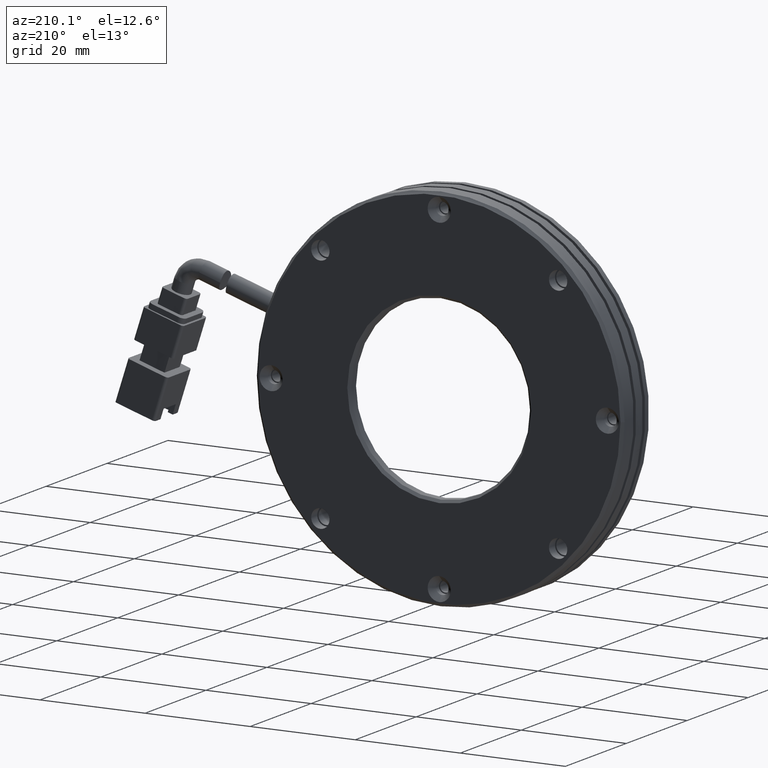
[diagram: clean part render]
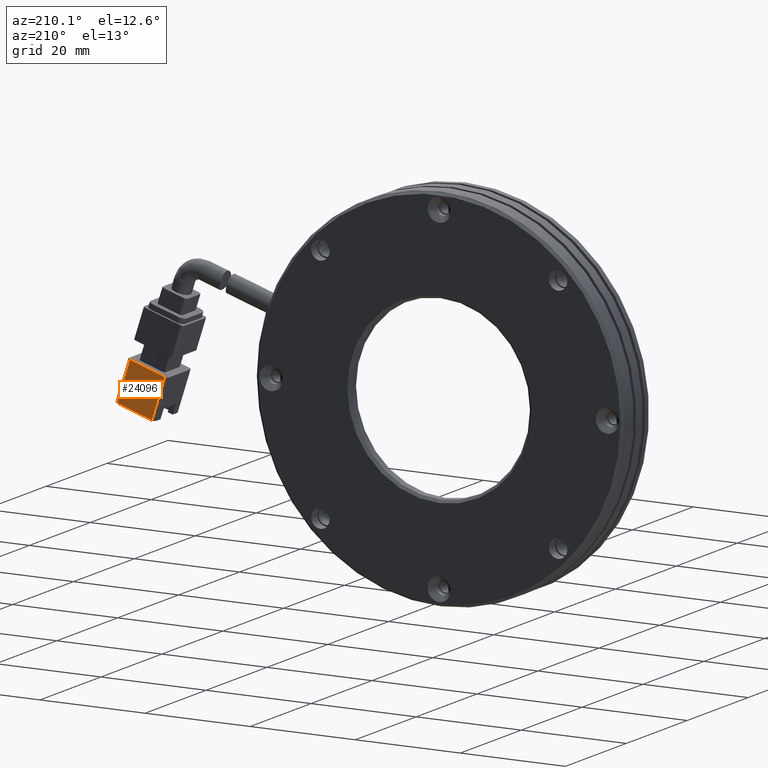
[diagram: same view with one face highlighted and labeled with its STEP entity id]
A machine part, auxiliary view. The second image highlights one B-rep face of the part: STEP entity #24096.
In plain terms, the highlighted planar face has unit normal (0, -1, 0).
Its self-contained STEP definition (entity closure, byte-faithful):
#176 = VECTOR ( 'NONE', #16676, 1000.000000000000100 ) ;
#2420 = EDGE_LOOP ( 'NONE', ( #38086, #36192, #39246, #17608 ) ) ;
#5446 = LINE ( 'NONE', #9832, #38492 ) ;
#6288 = VERTEX_POINT ( 'NONE', #12873 ) ;
#8391 = LINE ( 'NONE', #13557, #176 ) ;
#9832 = CARTESIAN_POINT ( 'NONE',  ( 49.55695576264164300, 12.26020291540428200, -9.906656460261640300 ) ) ;
#10977 = VERTEX_POINT ( 'NONE', #16696 ) ;
#11474 = PLANE ( 'NONE',  #13454 ) ;
#11525 = VECTOR ( 'NONE', #33159, 1000.000000000000100 ) ;
#11601 = DIRECTION ( 'NONE',  ( 1.182982220733096200E-016, -1.000000000000000000, 3.689287304970813900E-017 ) ) ;
#12178 = EDGE_CURVE ( 'NONE', #10977, #18290, #5446, .T. ) ;
#12873 = CARTESIAN_POINT ( 'NONE',  ( 53.74221542170811700, 12.26020291540428200, -0.1350853692757710600 ) ) ;
#12965 = DIRECTION ( 'NONE',  ( 0.3090169943749484500, 1.468953706219544100E-018, -0.9510565162951532000 ) ) ;
#13454 = AXIS2_PLACEMENT_3D ( 'NONE', #30354, #11601, #33482 ) ;
#13557 = CARTESIAN_POINT ( 'NONE',  ( 47.08481980764204900, 12.26020291540428200, -2.298204329900408000 ) ) ;
#16248 = CARTESIAN_POINT ( 'NONE',  ( 49.55695576264167800, 12.26020291540428200, -9.906656460261629600 ) ) ;
#16676 = DIRECTION ( 'NONE',  ( -0.9510565162951532000, -1.239088197126295300E-016, -0.3090169943749484500 ) ) ;
#16696 = CARTESIAN_POINT ( 'NONE',  ( 49.55695576264165700, 12.26020291540428200, -9.906656460261636700 ) ) ;
#17608 = ORIENTED_EDGE ( 'NONE', *, *, #18000, .F. ) ;
#18000 = EDGE_CURVE ( 'NONE', #6288, #39248, #8391, .T. ) ;
#18290 = VERTEX_POINT ( 'NONE', #23477 ) ;
#18819 = CARTESIAN_POINT ( 'NONE',  ( 47.08481980764207000, 12.26020291540428200, -2.298204329900404500 ) ) ;
#22078 = EDGE_CURVE ( 'NONE', #18290, #6288, #27157, .T. ) ;
#23384 = FACE_OUTER_BOUND ( 'NONE', #2420, .T. ) ;
#23477 = CARTESIAN_POINT ( 'NONE',  ( 56.21435137670771100, 12.26020291540428200, -7.743537499637003700 ) ) ;
#24096 = ADVANCED_FACE ( 'NONE', ( #23384 ), #11474, .F. ) ;
#24942 = LINE ( 'NONE', #16248, #32309 ) ;
#27157 = LINE ( 'NONE', #30031, #11525 ) ;
#30031 = CARTESIAN_POINT ( 'NONE',  ( 56.21435137670771100, 12.26020291540428200, -7.743537499637005400 ) ) ;
#30354 = CARTESIAN_POINT ( 'NONE',  ( 49.55695576264164300, 12.26020291540428200, -9.906656460261640300 ) ) ;
#31065 = EDGE_CURVE ( 'NONE', #39248, #10977, #24942, .T. ) ;
#32309 = VECTOR ( 'NONE', #12965, 1000.000000000000100 ) ;
#33159 = DIRECTION ( 'NONE',  ( -0.3090169943749484500, -1.468953706219544100E-018, 0.9510565162951532000 ) ) ;
#33482 = DIRECTION ( 'NONE',  ( -0.3090169943749484500, -1.468953706219544100E-018, 0.9510565162951532000 ) ) ;
#36192 = ORIENTED_EDGE ( 'NONE', *, *, #12178, .F. ) ;
#37840 = DIRECTION ( 'NONE',  ( 0.9510565162951532000, 1.239088197126295300E-016, 0.3090169943749484500 ) ) ;
#38086 = ORIENTED_EDGE ( 'NONE', *, *, #22078, .F. ) ;
#38492 = VECTOR ( 'NONE', #37840, 1000.000000000000100 ) ;
#39246 = ORIENTED_EDGE ( 'NONE', *, *, #31065, .F. ) ;
#39248 = VERTEX_POINT ( 'NONE', #18819 ) ;